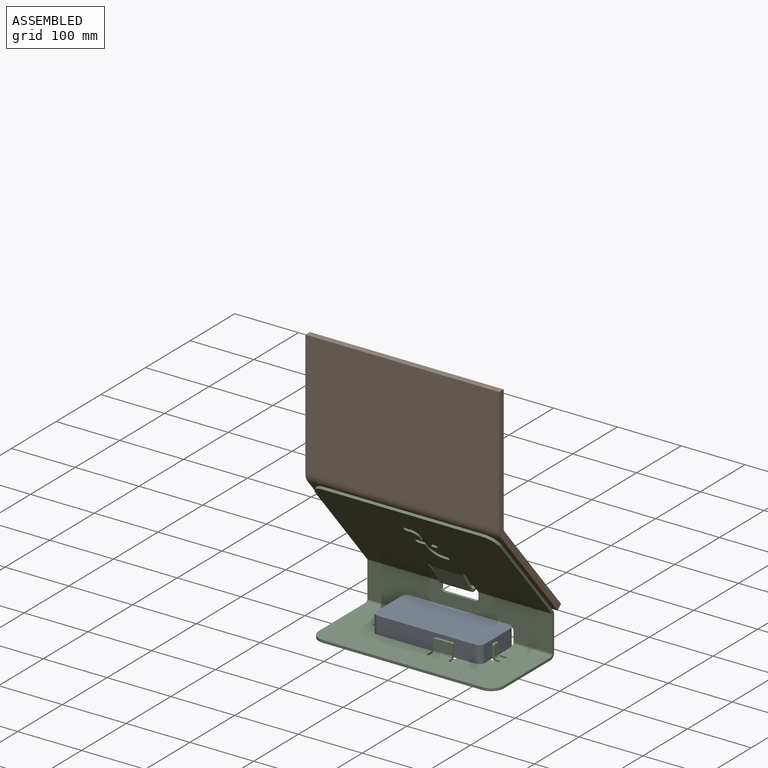
[diagram: assembled view]
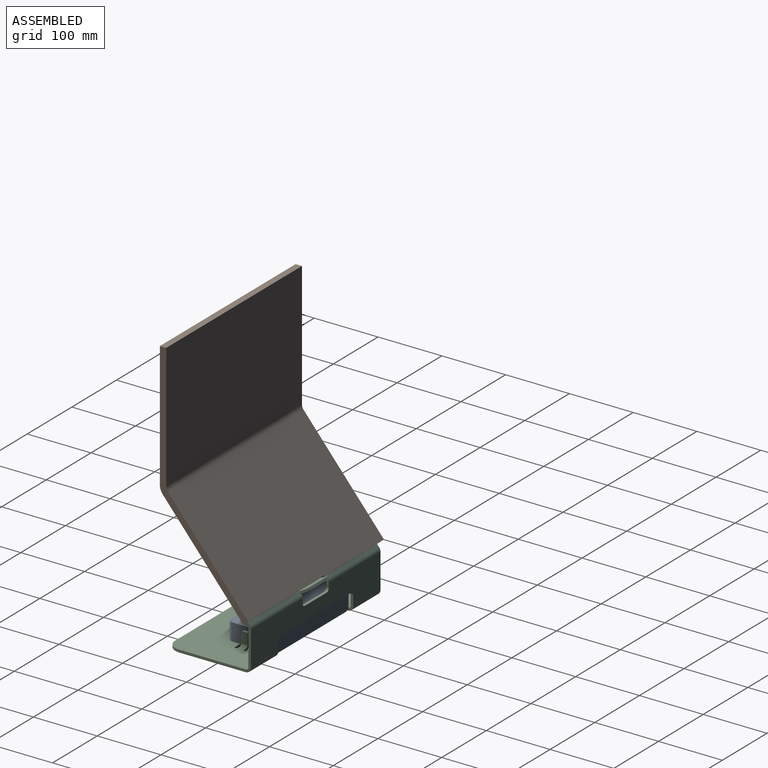
[diagram: assembled view, second angle]
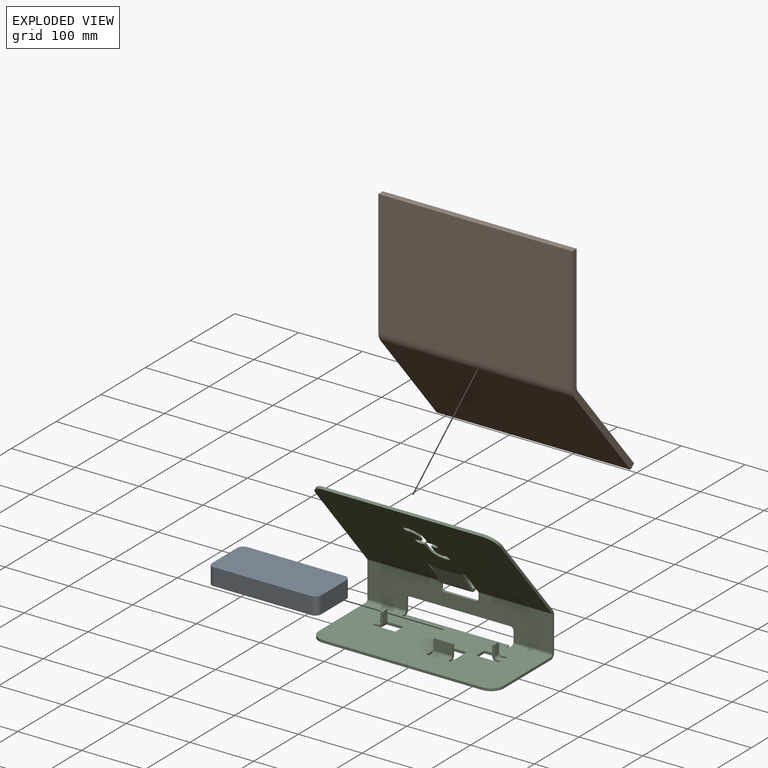
[diagram: exploded view]
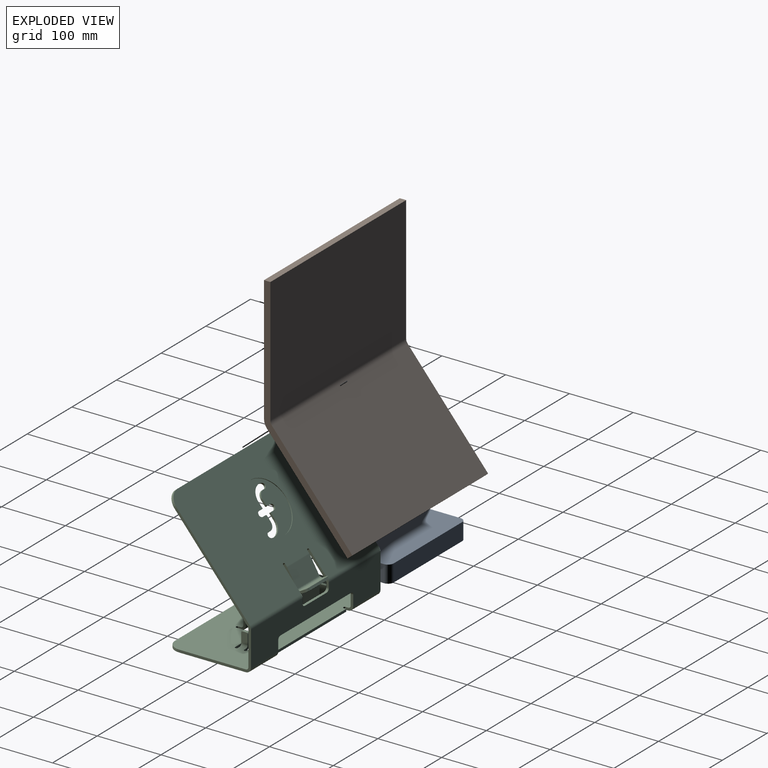
[diagram: exploded view, second angle]
ASSEMBLY  parts=3 mates=4
PART A: 10 faces, bbox 75x171x27 mm
  f0: plane 153x27mm, normal (1,0,0), area 4131mm2, adj f4,f5,f6,f9
  f1: plane 57x27mm, normal (0,1,0), area 1539mm2, adj f4,f5,f6,f7
  f2: plane 153x27mm, normal (-1,0,0), area 4131mm2, adj f4,f5,f7,f8
  f3: plane 57x27mm, normal (0,-1,0), area 1539mm2, adj f4,f5,f8,f9
  f4: plane 171x75mm, normal (0,0,1), area 12755.5mm2, adj f0,f1,f2,f3,f6,f7,f8,f9
  f5: plane 171x75mm, normal (0,0,-1), area 12755.5mm2, adj f0,f1,f2,f3,f6,f7,f8,f9
  f6: cylinder r=9mm len=27mm, axis (0,0,1), area 381.7mm2, adj f0,f1,f4,f5
  f7: cylinder r=9mm len=27mm, axis (0,0,-1), area 381.7mm2, adj f1,f2,f4,f5
  f8: cylinder r=9mm len=27mm, axis (0,0,1), area 381.7mm2, adj f2,f3,f4,f5
  f9: cylinder r=9mm len=27mm, axis (0,0,-1), area 381.7mm2, adj f0,f3,f4,f5
PART B: 14 faces, bbox 304x359.6x138.6 mm
  f0: plane 196.36x10mm, normal (-1,0,0), area 1963.6mm2, adj f2,f3,f4,f11
  f1: plane 196.36x10mm, normal (1,0,0), area 1963.6mm2, adj f2,f3,f4,f10
  f2: plane 304x10mm, normal (0,-1,0), area 3040mm2, adj f0,f1,f3,f4
  f3: plane 304x196.36mm, normal (0,0,-1), area 59693.5mm2, adj f0,f1,f2,f12
  f4: plane 304x196.36mm, normal (0,0,1), area 59693.5mm2, adj f0,f1,f2,f13
  f5: plane 156.85x133.88mm, normal (-1,0,0), area 1963.6mm2, adj f6,f8,f9,f11
  f6: plane 304x7.66mm, normal (0,0.77,0.64), area 3040mm2, adj f5,f7,f8,f9
  f7: plane 156.85x133.88mm, normal (1,0,0), area 1963.6mm2, adj f6,f8,f9,f10
  f8: plane 304x150.42mm, normal (0,0.64,-0.77), area 59693.5mm2, adj f5,f6,f7,f12
  f9: plane 304x150.42mm, normal (0,-0.64,0.77), area 59693.5mm2, adj f5,f6,f7,f13
  f10: plane 12.86x12.34mm, normal (1,0,0), area 104.7mm2, adj f1,f7,f12,f13
  f11: plane 12.86x12.34mm, normal (-1,0,0), area 104.7mm2, adj f0,f5,f12,f13
  f12: cylinder r=20mm len=304mm, axis (1,0,0), area 4244.6mm2, adj f3,f8,f10,f11
  f13: cylinder r=10mm len=304mm, axis (1,0,0), area 2122.3mm2, adj f4,f9,f10,f11
PART C: 300 faces, bbox 290x138.6x219.8 mm
  f0: plane 290x152.09mm, normal (0,-0.77,-0.64), area 53947.3mm2, adj f51,f52,f53,f54,f55,f56,f57,f58
  f1: plane 290x152.09mm, normal (0,0.77,0.64), area 49215mm2, adj f51,f52,f53,f54,f55,f56,f57,f58
  f2: plane 159.5x4mm, normal (0,1,0), area 638mm2, adj f3,f4,f20,f30
  f3: plane 290x124.56mm, normal (0,0,-1), area 33481.4mm2, adj f2,f5,f6,f7,f8,f9,f10,f11
  f4: plane 290x124.56mm, normal (0,0,1), area 33481.4mm2, adj f2,f5,f6,f7,f8,f9,f10,f11
  f5: plane 34.08x4mm, normal (0,-1,0), area 136.3mm2, adj f3,f4,f6,f22
  f6: plane 18.5x4mm, normal (1,0,0), area 74mm2, adj f3,f4,f5,f7
  f7: plane 34.08x4mm, normal (0,1,0), area 136.3mm2, adj f3,f4,f6,f25
  f8: plane 34.08x4mm, normal (0,-1,0), area 136.3mm2, adj f3,f4,f16,f36
  f9: plane 34.08x4mm, normal (0,1,0), area 136.3mm2, adj f3,f4,f16,f26
  f10: plane 34.08x4mm, normal (-1,0,0), area 136.3mm2, adj f3,f4,f11,f33
  f11: plane 38.5x4mm, normal (0,-1,0), area 154mm2, adj f3,f4,f10,f12
  f12: plane 34.08x4mm, normal (1,0,0), area 136.3mm2, adj f3,f4,f11,f32
  f13: plane 104.56x4mm, normal (1,0,0), area 418.2mm2, adj f3,f4,f18,f93
  f14: plane 250x4mm, normal (0,-1,0), area 1000mm2, adj f3,f4,f17,f18
  f15: plane 104.56x4mm, normal (-1,0,0), area 418.2mm2, adj f3,f4,f17,f90
  f16: plane 18.5x4mm, normal (-1,0,0), area 74mm2, adj f3,f4,f8,f9
  f17: cylinder r=20mm len=20mm, axis (0,0,1), area 125.7mm2, adj f3,f4,f14,f15
  f18: cylinder r=20mm len=20mm, axis (0,0,-1), area 125.7mm2, adj f3,f4,f13,f14
  f19: cylinder r=2.12mm len=4.25mm, axis (0,0,1), area 26.7mm2, adj f3,f4,f20,f21
  f20: plane 4x3.88mm, normal (-1,0,0), area 15.5mm2, adj f2,f3,f4,f19
  f21: plane 4x3.88mm, normal (1,0,0), area 15.5mm2, adj f3,f4,f19,f89
  f22: cylinder r=2.12mm len=4.25mm, axis (0,0,1), area 26.7mm2, adj f3,f4,f5,f23
  f23: plane 4x3.88mm, normal (0,1,0), area 15.5mm2, adj f3,f4,f22,f104
  f24: plane 4x3.88mm, normal (0,-1,0), area 15.5mm2, adj f3,f4,f25,f105
  f25: cylinder r=2.12mm len=4.25mm, axis (0,0,1), area 26.7mm2, adj f3,f4,f7,f24
  f26: cylinder r=2.12mm len=4.25mm, axis (0,0,1), area 26.7mm2, adj f3,f4,f9,f27
  f27: plane 4x3.88mm, normal (0,-1,0), area 15.5mm2, adj f3,f4,f26,f115
  f28: cylinder r=2.12mm len=4.25mm, axis (0,0,1), area 26.7mm2, adj f3,f4,f29,f30
  f29: plane 4x3.88mm, normal (-1,0,0), area 15.5mm2, adj f3,f4,f28,f94
  f30: plane 4x3.88mm, normal (1,0,0), area 15.5mm2, adj f2,f3,f4,f28
  f31: plane 4x3.88mm, normal (-1,0,0), area 15.5mm2, adj f3,f4,f32,f127
  f32: cylinder r=2.12mm len=4.25mm, axis (0,0,1), area 26.7mm2, adj f3,f4,f12,f31
  f33: cylinder r=2.12mm len=4.25mm, axis (0,0,1), area 26.7mm2, adj f3,f4,f10,f34
  f34: plane 4x3.88mm, normal (1,0,0), area 15.5mm2, adj f3,f4,f33,f126
  f35: plane 4x3.88mm, normal (0,1,0), area 15.5mm2, adj f3,f4,f36,f116
  f36: cylinder r=2.12mm len=4.25mm, axis (0,0,1), area 26.7mm2, adj f3,f4,f8,f35
  f37: plane 54.54x4mm, normal (-1,0,0), area 218.2mm2, adj f45,f46,f86,f90
  f38: plane 7.4x4mm, normal (1,0,0), area 29.6mm2, adj f45,f46,f49,f85
  f39: plane 48.5x4mm, normal (0,0,1), area 194mm2, adj f45,f46,f47,f49
  f40: plane 7.4x4mm, normal (-1,0,0), area 29.6mm2, adj f45,f46,f47,f82
  f41: plane 54.54x4mm, normal (1,0,0), area 218.2mm2, adj f45,f46,f81,f93
  f42: plane 16x4mm, normal (-1,0,0), area 64mm2, adj f45,f46,f48,f94
  f43: plane 158x4mm, normal (0,0,-1), area 632mm2, adj f45,f46,f48,f50
  f44: plane 16x4mm, normal (1,0,0), area 64mm2, adj f45,f46,f50,f89
  f45: plane 290x54.54mm, normal (0,1,0), area 11585.9mm2, adj f37,f38,f39,f40,f41,f42,f43,f44
  f46: plane 290x54.54mm, normal (0,-1,0), area 11585.9mm2, adj f37,f38,f39,f40,f41,f42,f43,f44
  f47: cylinder r=5mm len=5mm, axis (0,-1,0), area 31.4mm2, adj f39,f40,f45,f46
  f48: cylinder r=5mm len=5mm, axis (0,-1,0), area 31.4mm2, adj f42,f43,f45,f46
  f49: cylinder r=5mm len=5mm, axis (0,-1,0), area 31.4mm2, adj f38,f39,f45,f46
  f50: cylinder r=5mm len=5mm, axis (0,-1,0), area 31.4mm2, adj f43,f44,f45,f46
  f51: plane 36.45x31.49mm, normal (1,0,0), area 176.9mm2, adj f0,f1,f58,f85
  f52: plane 139.34x117.83mm, normal (-1,0,0), area 714.2mm2, adj f0,f1,f56,f86
  f53: plane 250x3.06mm, normal (0,-0.64,0.77), area 1000mm2, adj f0,f1,f56,f57
  f54: plane 139.34x117.83mm, normal (1,0,0), area 714.2mm2, adj f0,f1,f57,f81
  f55: plane 36.45x31.49mm, normal (-1,0,0), area 176.9mm2, adj f0,f1,f61,f82
  f56: cylinder r=20mm len=20mm, axis (0,0.77,0.64), area 125.7mm2, adj f0,f1,f52,f53
  f57: cylinder r=20mm len=20mm, axis (0,-0.77,-0.64), area 125.7mm2, adj f0,f1,f53,f54
  f58: cylinder r=2.12mm len=4.43mm, axis (0,-0.77,-0.64), area 26.7mm2, adj f0,f1,f51,f59
  f59: plane 5.56x5.54mm, normal (-1,0,0), area 15.5mm2, adj f0,f1,f58,f77
  f60: plane 5.56x5.54mm, normal (1,0,0), area 15.5mm2, adj f0,f1,f61,f78
  f61: cylinder r=2.12mm len=4.43mm, axis (0,-0.77,-0.64), area 26.7mm2, adj f0,f1,f55,f60
  f62: plane 28.24x18.61mm, normal (-1,0,0), area 121.2mm2, adj f64,f65,f73,f77
  f63: plane 28.24x18.61mm, normal (1,0,0), area 121.2mm2, adj f64,f65,f74,f78
  f64: plane 50x26.24mm, normal (0,0.87,0.5), area 1515mm2, adj f62,f63,f76,f79
  f65: plane 50x26.24mm, normal (0,-0.87,-0.5), area 1515mm2, adj f62,f63,f75,f80
  f66: plane 40x3.46mm, normal (0,0.87,0.5), area 160mm2, adj f69,f70,f71,f72
  f67: plane 8.06x6.96mm, normal (-1,0,0), area 28mm2, adj f69,f70,f71,f73
  f68: plane 8.06x6.96mm, normal (1,0,0), area 28mm2, adj f69,f70,f72,f74
  f69: plane 50x10.39mm, normal (0,-0.5,0.87), area 589.3mm2, adj f66,f67,f68,f71,f72,f76
  f70: plane 50x10.39mm, normal (0,0.5,-0.87), area 589.3mm2, adj f66,f67,f68,f71,f72,f75
  f71: cylinder r=5mm len=6.33mm, axis (0,-0.5,0.87), area 31.4mm2, adj f66,f67,f69,f70
  f72: cylinder r=5mm len=6.33mm, axis (0,-0.5,0.87), area 31.4mm2, adj f66,f68,f69,f70
  f73: plane 10.93x6mm, normal (-1,0,0), area 37.7mm2, adj f62,f67,f75,f76
  f74: plane 10.93x6mm, normal (1,0,0), area 37.7mm2, adj f63,f68,f75,f76
  f75: cylinder r=8mm len=50mm, axis (-1,0,0), area 628.3mm2, adj f65,f70,f73,f74
  f76: cylinder r=4mm len=50mm, axis (-1,0,0), area 314.2mm2, adj f64,f69,f73,f74
  f77: plane 3.86x3.14mm, normal (-1,0,0), area 4.2mm2, adj f59,f62,f79,f80
  f78: plane 3.86x3.14mm, normal (1,0,0), area 4.2mm2, adj f60,f63,f79,f80
  f79: cylinder r=8mm len=50mm, axis (-1,0,0), area 69.8mm2, adj f1,f64,f77,f78
  f80: cylinder r=4mm len=50mm, axis (-1,0,0), area 34.9mm2, adj f0,f65,f77,f78
  f81: plane 5.14x4.94mm, normal (1,0,0), area 16.8mm2, adj f41,f54,f83,f84
  f82: plane 5.14x4.94mm, normal (-1,0,0), area 16.8mm2, adj f40,f55,f83,f84
  f83: cylinder r=8mm len=115.75mm, axis (1,0,0), area 646.5mm2, adj f1,f45,f81,f82
  f84: cylinder r=4mm len=115.75mm, axis (1,0,0), area 323.2mm2, adj f0,f46,f81,f82
  f85: plane 5.14x4.94mm, normal (1,0,0), area 16.8mm2, adj f38,f51,f87,f88
  f86: plane 5.14x4.94mm, normal (-1,0,0), area 16.8mm2, adj f37,f52,f87,f88
  f87: cylinder r=8mm len=115.75mm, axis (1,0,0), area 646.5mm2, adj f1,f45,f85,f86
  f88: cylinder r=4mm len=115.75mm, axis (1,0,0), area 323.2mm2, adj f0,f46,f85,f86
  f89: plane 8x8mm, normal (1,0,0), area 37.7mm2, adj f21,f44,f91,f92
  f90: plane 8x8mm, normal (-1,0,0), area 37.7mm2, adj f15,f37,f91,f92
  f91: cylinder r=8mm len=61mm, axis (1,0,0), area 766.5mm2, adj f3,f45,f89,f90
  f92: cylinder r=4mm len=61mm, axis (1,0,0), area 383.3mm2, adj f4,f46,f89,f90
  f93: plane 8x8mm, normal (1,0,0), area 37.7mm2, adj f13,f41,f95,f96
  f94: plane 8x8mm, normal (-1,0,0), area 37.7mm2, adj f29,f42,f95,f96
  f95: cylinder r=8mm len=61mm, axis (1,0,0), area 766.5mm2, adj f3,f45,f93,f94
  f96: cylinder r=4mm len=61mm, axis (1,0,0), area 383.3mm2, adj f4,f46,f93,f94
  f97: plane 6x4mm, normal (0,0,1), area 24mm2, adj f100,f101,f102,f103
  f98: plane 15x4mm, normal (0,1,0), area 60mm2, adj f100,f101,f102,f104
  f99: plane 15x4mm, normal (0,-1,0), area 60mm2, adj f100,f101,f103,f105
  f100: plane 17x10mm, normal (-1,0,0), area 168.3mm2, adj f97,f98,f99,f102,f103,f106
  f101: plane 17x10mm, normal (1,0,0), area 168.3mm2, adj f97,f98,f99,f102,f103,f107
  f102: cylinder r=2mm len=4mm, axis (-1,0,0), area 12.6mm2, adj f97,f98,f100,f101
  f103: cylinder r=2mm len=4mm, axis (-1,0,0), area 12.6mm2, adj f97,f99,f100,f101
  f104: plane 8x8mm, normal (0,1,0), area 37.7mm2, adj f23,f98,f106,f107
  f105: plane 8x8mm, normal (0,-1,0), area 37.7mm2, adj f24,f99,f106,f107
  f106: cylinder r=8mm len=10mm, axis (0,1,0), area 125.7mm2, adj f3,f100,f104,f105
  f107: cylinder r=4mm len=10mm, axis (0,1,0), area 62.8mm2, adj f4,f101,f104,f105
  f108: plane 6x4mm, normal (0,0,1), area 24mm2, adj f111,f112,f113,f114
  f109: plane 15x4mm, normal (0,-1,0), area 60mm2, adj f111,f112,f113,f115
  f110: plane 15x4mm, normal (0,1,0), area 60mm2, adj f111,f112,f114,f116
  f111: plane 17x10mm, normal (1,0,0), area 168.3mm2, adj f108,f109,f110,f113,f114,f117
  f112: plane 17x10mm, normal (-1,0,0), area 168.3mm2, adj f108,f109,f110,f113,f114,f118
  f113: cylinder r=2mm len=4mm, axis (1,0,0), area 12.6mm2, adj f108,f109,f111,f112
  f114: cylinder r=2mm len=4mm, axis (1,0,0), area 12.6mm2, adj f108,f110,f111,f112
  f115: plane 8x8mm, normal (0,-1,0), area 37.7mm2, adj f27,f109,f117,f118
  f116: plane 8x8mm, normal (0,1,0), area 37.7mm2, adj f35,f110,f117,f118
  f117: cylinder r=8mm len=10mm, axis (0,-1,0), area 125.7mm2, adj f3,f111,f115,f116
  f118: cylinder r=4mm len=10mm, axis (0,-1,0), area 62.8mm2, adj f4,f112,f115,f116
  f119: plane 26x4mm, normal (0,0,1), area 104mm2, adj f122,f123,f124,f125
  f120: plane 15x4mm, normal (1,0,0), area 60mm2, adj f122,f123,f124,f126
  f121: plane 15x4mm, normal (-1,0,0), area 60mm2, adj f122,f123,f125,f127
  f122: plane 30x17mm, normal (0,1,0), area 508.3mm2, adj f119,f120,f121,f124,f125,f128
  f123: plane 30x17mm, normal (0,-1,0), area 508.3mm2, adj f119,f120,f121,f124,f125,f129
  f124: cylinder r=2mm len=4mm, axis (0,1,0), area 12.6mm2, adj f119,f120,f122,f123
  f125: cylinder r=2mm len=4mm, axis (0,1,0), area 12.6mm2, adj f119,f121,f122,f123
  f126: plane 8x8mm, normal (1,0,0), area 37.7mm2, adj f34,f120,f128,f129
  f127: plane 8x8mm, normal (-1,0,0), area 37.7mm2, adj f31,f121,f128,f129
  f128: cylinder r=8mm len=30mm, axis (1,0,0), area 377mm2, adj f3,f122,f126,f127
  f129: cylinder r=4mm len=30mm, axis (1,0,0), area 188.5mm2, adj f4,f123,f126,f127
  f130: plane 2.27x2.13mm, normal (1,0,0), area 2.1mm2, adj f1,f131,f187,f188
  f131: plane 3.09x2.82mm, normal (1,0.04,-0.05), area 3.2mm2, adj f1,f130,f132,f188
  f132: plane 3.81x3.42mm, normal (0.99,0.1,-0.12), area 4.2mm2, adj f1,f131,f133,f188
  f133: plane 3.7x3.33mm, normal (0.97,0.16,-0.19), area 4.1mm2, adj f1,f132,f134,f188
  f134: plane 3.57x3.22mm, normal (0.94,0.22,-0.26), area 4.1mm2, adj f1,f133,f135,f188
  f135: plane 3.43x3.1mm, normal (0.9,0.28,-0.33), area 4mm2, adj f1,f134,f136,f188
  f136: plane 3.27x2.97mm, normal (0.85,0.33,-0.4), area 4mm2, adj f1,f135,f137,f188
  f137: plane 3.1x2.83mm, normal (0.8,0.38,-0.46), area 4mm2, adj f1,f136,f138,f188
  f138: plane 2.91x2.69mm, normal (0.74,0.43,-0.52), area 4mm2, adj f1,f137,f139,f188
  f139: plane 2.95x2.7mm, normal (0.67,0.48,-0.57), area 4mm2, adj f1,f138,f140,f188
  f140: plane 3.2x2.48mm, normal (0.6,0.51,-0.61), area 4mm2, adj f1,f139,f141,f188
  f141: plane 3.43x2.24mm, normal (0.52,0.55,-0.65), area 4mm2, adj f1,f140,f142,f188
  f142: plane 3.64x1.99mm, normal (0.43,0.58,-0.69), area 4mm2, adj f1,f141,f143,f188
  f143: plane 3.82x1.71mm, normal (0.34,0.6,-0.72), area 4.1mm2, adj f1,f142,f144,f188
  f144: plane 3.99x1.43mm, normal (0.25,0.62,-0.74), area 4.1mm2, adj f1,f143,f145,f188
  f145: plane 4.13x1.17mm, normal (0.15,0.64,-0.76), area 4.2mm2, adj f1,f144,f146,f188
  f146: plane 3.19x0.9mm, normal (0.07,0.64,-0.76), area 3.2mm2, adj f1,f145,f147,f188
  f147: plane 2.13x0.77mm, normal (0,0.64,-0.77), area 2.1mm2, adj f1,f146,f148,f188
  f148: plane 3.19x0.9mm, normal (-0.07,0.64,-0.76), area 3.2mm2, adj f1,f147,f149,f188
  f149: plane 4.13x1.17mm, normal (-0.15,0.64,-0.76), area 4.2mm2, adj f1,f148,f150,f188
  f150: plane 3.98x1.43mm, normal (-0.25,0.62,-0.74), area 4.1mm2, adj f1,f149,f151,f188
  f151: plane 3.82x1.71mm, normal (-0.34,0.6,-0.72), area 4.1mm2, adj f1,f150,f152,f188
  f152: plane 3.64x1.98mm, normal (-0.43,0.58,-0.69), area 4mm2, adj f1,f151,f153,f188
  f153: plane 3.43x2.24mm, normal (-0.52,0.55,-0.65), area 4mm2, adj f1,f152,f154,f188
  f154: plane 3.2x2.48mm, normal (-0.6,0.51,-0.61), area 4mm2, adj f1,f153,f155,f188
  f155: plane 2.95x2.7mm, normal (-0.67,0.48,-0.57), area 4mm2, adj f1,f154,f156,f188
  f156: plane 2.9x2.69mm, normal (-0.74,0.43,-0.52), area 4mm2, adj f1,f155,f157,f188
  f157: plane 3.1x2.82mm, normal (-0.8,0.38,-0.46), area 4mm2, adj f1,f156,f158,f188
  f158: plane 3.27x2.97mm, normal (-0.85,0.33,-0.4), area 4mm2, adj f1,f157,f159,f188
  f159: plane 3.43x3.1mm, normal (-0.9,0.28,-0.33), area 4mm2, adj f1,f158,f160,f188
  f160: plane 3.57x3.22mm, normal (-0.94,0.22,-0.26), area 4.1mm2, adj f1,f159,f161,f188
  f161: plane 3.7x3.33mm, normal (-0.97,0.16,-0.19), area 4.1mm2, adj f1,f160,f162,f188
  f162: plane 3.81x3.42mm, normal (-0.99,0.1,-0.12), area 4.2mm2, adj f1,f161,f163,f188
  f163: plane 3.09x2.82mm, normal (-1,0.04,-0.05), area 3.2mm2, adj f1,f162,f164,f188
  f164: plane 26.12x22.14mm, normal (-1,0,0), area 33.3mm2, adj f1,f163,f165,f188
  f165: plane 1.36x1.35mm, normal (-1,0,0), area 0.9mm2, adj f1,f164,f166,f188
  f166: plane 2.75x2.54mm, normal (-0.97,-0.17,0.2), area 2.9mm2, adj f1,f165,f167,f188
  f167: plane 2.94x2.69mm, normal (-0.83,-0.36,0.43), area 3.6mm2, adj f1,f166,f168,f188
  f168: plane 3x2.19mm, normal (-0.56,-0.53,0.64), area 3.6mm2, adj f1,f167,f169,f188
  f169: plane 2.76x1.24mm, normal (-0.26,-0.62,0.74), area 2.9mm2, adj f1,f168,f170,f188
  f170: plane 33.08x0.77mm, normal (0,-0.64,0.77), area 33.1mm2, adj f1,f169,f171,f188
  f171: plane 1.06x0.77mm, normal (0,-0.64,0.77), area 1.1mm2, adj f1,f170,f172,f188
  f172: plane 3.19x0.9mm, normal (0.07,-0.64,0.76), area 3.2mm2, adj f1,f171,f173,f188
  f173: plane 4.13x1.17mm, normal (0.15,-0.64,0.76), area 4.2mm2, adj f1,f172,f174,f188
  f174: plane 3.99x1.43mm, normal (0.25,-0.62,0.74), area 4.1mm2, adj f1,f173,f175,f188
  f175: plane 3.82x1.72mm, normal (0.34,-0.6,0.72), area 4.1mm2, adj f1,f174,f176,f188
  f176: plane 3.64x1.99mm, normal (0.43,-0.58,0.69), area 4mm2, adj f1,f175,f177,f188
  f177: plane 3.43x2.24mm, normal (0.52,-0.55,0.65), area 4mm2, adj f1,f176,f178,f188
  f178: plane 3.2x2.48mm, normal (0.6,-0.51,0.61), area 4mm2, adj f1,f177,f179,f188
  f179: plane 2.95x2.7mm, normal (0.67,-0.48,0.57), area 4mm2, adj f1,f178,f180,f188
  f180: plane 2.91x2.68mm, normal (0.74,-0.43,0.51), area 4mm2, adj f1,f179,f181,f188
  f181: plane 3.1x2.82mm, normal (0.8,-0.38,0.46), area 4mm2, adj f1,f180,f182,f188
  f182: plane 3.27x2.97mm, normal (0.85,-0.33,0.4), area 4mm2, adj f1,f181,f183,f188
  f183: plane 3.43x3.1mm, normal (0.9,-0.28,0.33), area 4mm2, adj f1,f182,f184,f188
  f184: plane 3.57x3.22mm, normal (0.94,-0.22,0.26), area 4.1mm2, adj f1,f183,f185,f188
  f185: plane 3.7x3.33mm, normal (0.97,-0.16,0.19), area 4.1mm2, adj f1,f184,f186,f188
  f186: plane 3.81x3.42mm, normal (0.99,-0.1,0.12), area 4.2mm2, adj f1,f185,f187,f188
  f187: plane 3.09x2.82mm, normal (1,-0.04,0.05), area 3.2mm2, adj f1,f130,f186,f188
  f188: plane 83.2x63.74mm, normal (0,0.77,0.64), area 4732.3mm2, adj f130,f131,f132,f133,f134,f135,f136,f137
  f189: plane 6.77x2.3mm, normal (0,0.64,-0.77), area 20.3mm2, adj f0,f188,f190,f258
  f190: plane 2.3x1.93mm, normal (0,0.64,-0.77), area 0.4mm2, adj f0,f188,f189,f191
  f191: plane 2.37x2.02mm, normal (0.26,0.62,-0.74), area 1.3mm2, adj f0,f188,f190,f192
  f192: plane 2.5x2.17mm, normal (0.56,0.53,-0.64), area 1.7mm2, adj f0,f188,f191,f193
  f193: plane 2.6x2.28mm, normal (0.83,0.36,-0.43), area 1.7mm2, adj f0,f188,f192,f194
  f194: plane 2.57x2.25mm, normal (0.97,0.17,-0.2), area 1.3mm2, adj f0,f188,f193,f259
  f195: plane 3.3x3.12mm, normal (0.99,-0.09,0.1), area 4.7mm2, adj f0,f188,f196,f259
  f196: plane 3.54x3.41mm, normal (0.95,-0.19,0.23), area 6.1mm2, adj f0,f188,f195,f197
  f197: plane 3.42x3.27mm, normal (0.88,-0.31,0.37), area 6mm2, adj f0,f188,f196,f198
  f198: plane 3.28x3.09mm, normal (0.77,-0.41,0.49), area 5.9mm2, adj f0,f188,f197,f199
  f199: plane 3.11x2.89mm, normal (0.64,-0.5,0.59), area 5.9mm2, adj f0,f188,f198,f200
  f200: plane 2.91x2.66mm, normal (0.48,-0.56,0.67), area 6mm2, adj f0,f188,f199,f201
  f201: plane 2.68x2.39mm, normal (0.3,-0.61,0.73), area 6.1mm2, adj f0,f188,f200,f202
  f202: plane 2.43x2.09mm, normal (0.13,-0.64,0.76), area 4.7mm2, adj f0,f188,f201,f203
  f203: plane 2.3x1.93mm, normal (0,-0.64,0.77), area 2.5mm2, adj f0,f188,f202,f204
  f204: plane 2.32x1.96mm, normal (-0.04,-0.64,0.77), area 2.7mm2, adj f0,f188,f203,f205
  f205: plane 2.35x1.99mm, normal (-0.1,-0.64,0.76), area 2.6mm2, adj f0,f188,f204,f206
  f206: plane 2.35x1.99mm, normal (-0.11,-0.64,0.76), area 2.3mm2, adj f0,f188,f205,f207
  f207: plane 2.32x1.96mm, normal (-0.06,-0.64,0.76), area 2mm2, adj f0,f188,f206,f260
  f208: plane 2.37x2.01mm, normal (0.25,0.62,-0.74), area 1.3mm2, adj f0,f188,f209,f269
  f209: plane 2.36x2mm, normal (0.25,0.62,-0.74), area 1.2mm2, adj f0,f188,f208,f210
  f210: plane 2.52x2.19mm, normal (0.19,0.63,-0.75), area 5.3mm2, adj f0,f188,f209,f211
  f211: plane 2.39x2.04mm, normal (0.09,0.64,-0.76), area 5mm2, adj f0,f188,f210,f212
  f212: plane 2.3x1.93mm, normal (0,0.64,-0.77), area 4.6mm2, adj f0,f188,f211,f213
  f213: plane 2.95x2.55mm, normal (-0.13,0.64,-0.76), area 8.9mm2, adj f0,f188,f212,f214
  f214: plane 3.67x3.03mm, normal (-0.3,0.61,-0.73), area 11.5mm2, adj f0,f188,f213,f215
  f215: plane 3.46x3.32mm, normal (-0.48,0.56,-0.67), area 11.3mm2, adj f0,f188,f214,f216
  f216: plane 3.83x3.76mm, normal (-0.64,0.5,-0.59), area 11.2mm2, adj f0,f188,f215,f217
  f217: plane 4.16x4.14mm, normal (-0.77,0.41,-0.49), area 11.2mm2, adj f0,f188,f216,f218
  f218: plane 4.47x4.43mm, normal (-0.88,0.31,-0.37), area 11.3mm2, adj f0,f188,f217,f219
  f219: plane 4.74x4.65mm, normal (-0.96,0.19,-0.23), area 11.5mm2, adj f0,f188,f218,f220
  f220: plane 4.2x4.19mm, normal (-0.99,0.09,-0.1), area 8.9mm2, adj f0,f188,f219,f270
  f221: plane 6.77x2.3mm, normal (0,-0.64,0.77), area 20.3mm2, adj f0,f188,f222,f281
  f222: plane 2.3x1.93mm, normal (0,-0.64,0.77), area 0.4mm2, adj f0,f188,f221,f223
  f223: plane 2.37x2.02mm, normal (-0.26,-0.62,0.74), area 1.3mm2, adj f0,f188,f222,f224
  f224: plane 2.5x2.17mm, normal (-0.56,-0.53,0.64), area 1.7mm2, adj f0,f188,f223,f225
  f225: plane 2.59x2.28mm, normal (-0.83,-0.36,0.43), area 1.7mm2, adj f0,f188,f224,f226
  f226: plane 2.57x2.25mm, normal (-0.96,-0.17,0.2), area 1.3mm2, adj f0,f188,f225,f282
  f227: plane 2.63x2.33mm, normal (-1,0,0), area 1.6mm2, adj f0,f188,f228,f282
  f228: plane 3.3x3.12mm, normal (-0.99,0.09,-0.1), area 4.7mm2, adj f0,f188,f227,f229
  f229: plane 3.54x3.41mm, normal (-0.95,0.19,-0.23), area 6.1mm2, adj f0,f188,f228,f230
  f230: plane 3.42x3.27mm, normal (-0.88,0.31,-0.37), area 6mm2, adj f0,f188,f229,f231
  f231: plane 3.28x3.09mm, normal (-0.77,0.41,-0.49), area 5.9mm2, adj f0,f188,f230,f232
  f232: plane 3.11x2.89mm, normal (-0.64,0.5,-0.59), area 5.9mm2, adj f0,f188,f231,f233
  f233: plane 2.91x2.66mm, normal (-0.48,0.56,-0.67), area 6mm2, adj f0,f188,f232,f234
  f234: plane 2.68x2.39mm, normal (-0.3,0.61,-0.73), area 6.1mm2, adj f0,f188,f233,f235
  f235: plane 2.43x2.09mm, normal (-0.13,0.64,-0.76), area 4.7mm2, adj f0,f188,f234,f236
  f236: plane 2.3x1.93mm, normal (0,0.64,-0.77), area 2.5mm2, adj f0,f188,f235,f237
  f237: plane 2.32x1.96mm, normal (0.04,0.64,-0.77), area 2.7mm2, adj f0,f188,f236,f238
  f238: plane 2.35x1.99mm, normal (0.1,0.64,-0.76), area 2.6mm2, adj f0,f188,f237,f239
  f239: plane 2.35x1.99mm, normal (0.11,0.64,-0.76), area 2.3mm2, adj f0,f188,f238,f240
  f240: plane 2.32x1.96mm, normal (0.06,0.64,-0.76), area 1.9mm2, adj f0,f188,f239,f283
  f241: plane 2.37x2.01mm, normal (-0.25,-0.62,0.74), area 1.3mm2, adj f0,f188,f242,f292
  f242: plane 2.36x2mm, normal (-0.25,-0.62,0.74), area 1.2mm2, adj f0,f188,f241,f243
  f243: plane 2.52x2.19mm, normal (-0.19,-0.63,0.75), area 5.3mm2, adj f0,f188,f242,f244
  f244: plane 2.39x2.04mm, normal (-0.09,-0.64,0.76), area 5mm2, adj f0,f188,f243,f245
  f245: plane 2.3x1.93mm, normal (0,-0.64,0.77), area 4.6mm2, adj f0,f188,f244,f246
  f246: plane 2.95x2.55mm, normal (0.13,-0.64,0.76), area 8.9mm2, adj f0,f188,f245,f247
  f247: plane 3.67x3.03mm, normal (0.3,-0.61,0.73), area 11.5mm2, adj f0,f188,f246,f248
  f248: plane 3.46x3.32mm, normal (0.48,-0.56,0.67), area 11.3mm2, adj f0,f188,f247,f249
  f249: plane 3.83x3.76mm, normal (0.64,-0.5,0.59), area 11.2mm2, adj f0,f188,f248,f250
  f250: plane 4.16x4.14mm, normal (0.77,-0.41,0.49), area 11.2mm2, adj f0,f188,f249,f251
  f251: plane 4.47x4.43mm, normal (0.88,-0.31,0.37), area 11.3mm2, adj f0,f188,f250,f252
  f252: plane 4.74x4.65mm, normal (0.96,-0.19,0.23), area 11.5mm2, adj f0,f188,f251,f253
  f253: plane 4.2x4.19mm, normal (0.99,-0.09,0.1), area 8.9mm2, adj f0,f188,f252,f293
  f254: plane 3.16x2.95mm, normal (0.97,0.17,-0.2), area 4.1mm2, adj f0,f188,f255,f299
  f255: plane 3.23x3.03mm, normal (0.83,0.36,-0.43), area 5.2mm2, adj f0,f188,f254,f256
  f256: plane 2.92x2.67mm, normal (0.56,0.53,-0.64), area 5.2mm2, adj f0,f188,f255,f257
  f257: plane 2.53x2.2mm, normal (0.26,0.62,-0.74), area 4.1mm2, adj f0,f188,f256,f258
  f258: plane 2.3x1.93mm, normal (0,0.64,-0.77), area 1.3mm2, adj f0,f188,f189,f257
  f259: plane 9.29x8.48mm, normal (1,0,0), area 28.8mm2, adj f0,f188,f194,f195
  f260: plane 2.3x1.93mm, normal (0,-0.64,0.77), area 2.1mm2, adj f0,f188,f207,f261
  f261: plane 2.51x2.18mm, normal (0.23,-0.63,0.75), area 4.4mm2, adj f0,f188,f260,f262
  f262: plane 2.89x2.63mm, normal (0.53,-0.54,0.65), area 5.2mm2, adj f0,f188,f261,f263
  f263: plane 3.19x3mm, normal (0.83,-0.36,0.43), area 5mm2, adj f0,f188,f262,f264
  f264: plane 3.15x2.94mm, normal (0.97,-0.16,0.19), area 4.1mm2, adj f0,f188,f263,f265
  f265: plane 2.82x2.55mm, normal (1,0,0), area 2.5mm2, adj f0,f188,f264,f266
  f266: plane 3.03x2.8mm, normal (0.96,0.17,-0.21), area 3.5mm2, adj f0,f188,f265,f267
  f267: plane 3.14x2.93mm, normal (0.84,0.35,-0.42), area 4.7mm2, adj f0,f188,f266,f268
  f268: plane 2.96x2.71mm, normal (0.63,0.5,-0.6), area 4.9mm2, adj f0,f188,f267,f269
  f269: plane 2.65x2.35mm, normal (0.43,0.58,-0.69), area 3.8mm2, adj f0,f188,f208,f268
  f270: plane 10.61x9.58mm, normal (-1,0,0), area 34mm2, adj f0,f188,f220,f271
  f271: plane 8.63x2.3mm, normal (0,0.64,-0.77), area 25.9mm2, adj f0,f188,f270,f272
  f272: plane 2.52x2.2mm, normal (-0.25,0.62,-0.74), area 4.2mm2, adj f0,f188,f271,f273
  f273: plane 2.92x2.67mm, normal (-0.55,0.54,-0.64), area 5.3mm2, adj f0,f188,f272,f274
  f274: plane 3.23x3.04mm, normal (-0.83,0.36,-0.43), area 5.3mm2, adj f0,f188,f273,f275
  f275: plane 3.16x2.95mm, normal (-0.97,0.17,-0.2), area 4.2mm2, adj f0,f188,f274,f276
  f276: plane 2.87x2.61mm, normal (-1,0,0), area 2.7mm2, adj f0,f188,f275,f277
  f277: plane 3.16x2.95mm, normal (-0.97,-0.17,0.2), area 4.1mm2, adj f0,f188,f276,f278
  f278: plane 3.23x3.03mm, normal (-0.83,-0.36,0.43), area 5.2mm2, adj f0,f188,f277,f279
  f279: plane 2.92x2.67mm, normal (-0.56,-0.53,0.64), area 5.2mm2, adj f0,f188,f278,f280
  f280: plane 2.53x2.2mm, normal (-0.26,-0.62,0.74), area 4.1mm2, adj f0,f188,f279,f281
  f281: plane 2.3x1.93mm, normal (0,-0.64,0.77), area 1.3mm2, adj f0,f188,f221,f280
  f282: plane 8.9x8.15mm, normal (-1,0,0), area 27.3mm2, adj f0,f188,f226,f227
  f283: plane 2.3x1.93mm, normal (0,0.64,-0.77), area 2.1mm2, adj f0,f188,f240,f284
  f284: plane 2.51x2.18mm, normal (-0.23,0.63,-0.75), area 4.4mm2, adj f0,f188,f283,f285
  f285: plane 2.89x2.63mm, normal (-0.53,0.54,-0.65), area 5.2mm2, adj f0,f188,f284,f286
  f286: plane 3.19x2.99mm, normal (-0.83,0.36,-0.43), area 5mm2, adj f0,f188,f285,f287
  f287: plane 3.15x2.94mm, normal (-0.97,0.16,-0.19), area 4.1mm2, adj f0,f188,f286,f288
  f288: plane 2.82x2.55mm, normal (-1,0,0), area 2.5mm2, adj f0,f188,f287,f289
  f289: plane 3.03x2.8mm, normal (-0.96,-0.17,0.21), area 3.5mm2, adj f0,f188,f288,f290
  f290: plane 3.14x2.93mm, normal (-0.84,-0.35,0.42), area 4.7mm2, adj f0,f188,f289,f291
  f291: plane 2.96x2.71mm, normal (-0.63,-0.5,0.6), area 4.9mm2, adj f0,f188,f290,f292
  f292: plane 2.65x2.35mm, normal (-0.43,-0.58,0.69), area 3.8mm2, adj f0,f188,f241,f291
  f293: plane 10.61x9.58mm, normal (1,0,0), area 34mm2, adj f0,f188,f253,f294
  f294: plane 8.62x2.3mm, normal (0,-0.64,0.77), area 25.9mm2, adj f0,f188,f293,f295
  f295: plane 2.53x2.2mm, normal (0.25,-0.62,0.74), area 4.2mm2, adj f0,f188,f294,f296
  f296: plane 2.92x2.67mm, normal (0.55,-0.54,0.64), area 5.3mm2, adj f0,f188,f295,f297
  f297: plane 3.23x3.04mm, normal (0.83,-0.36,0.43), area 5.2mm2, adj f0,f188,f296,f298
  f298: plane 3.16x2.95mm, normal (0.97,-0.17,0.2), area 4.2mm2, adj f0,f188,f297,f299
  f299: plane 2.87x2.61mm, normal (1,0,0), area 2.7mm2, adj f0,f188,f254,f298
PLACE A rot(axis=(0,0,-1),90deg) t=(1.47,22.06,-106.75)mm
PLACE B rot(axis=(0,0.42,0.91),180deg) t=(3.84,65.81,-32.42)mm
PLACE C t=(1.47,-69,-106.75)mm fixed
MATE planar A.f1 <-> C.f100  axis (1,0,0) through (86.97,22.06,-93.25)mm
MATE planar C.f1 <-> B.f3  axis (0,0.77,0.64) through (1.54,-3.11,34.15)mm
MATE planar C.f122 <-> A.f0  axis (0,1,0) through (29.97,-15.44,-94.27)mm
MATE planar C.f4 <-> A.f5  axis (0,0,1) through (0.44,-7.2,-106.75)mm
